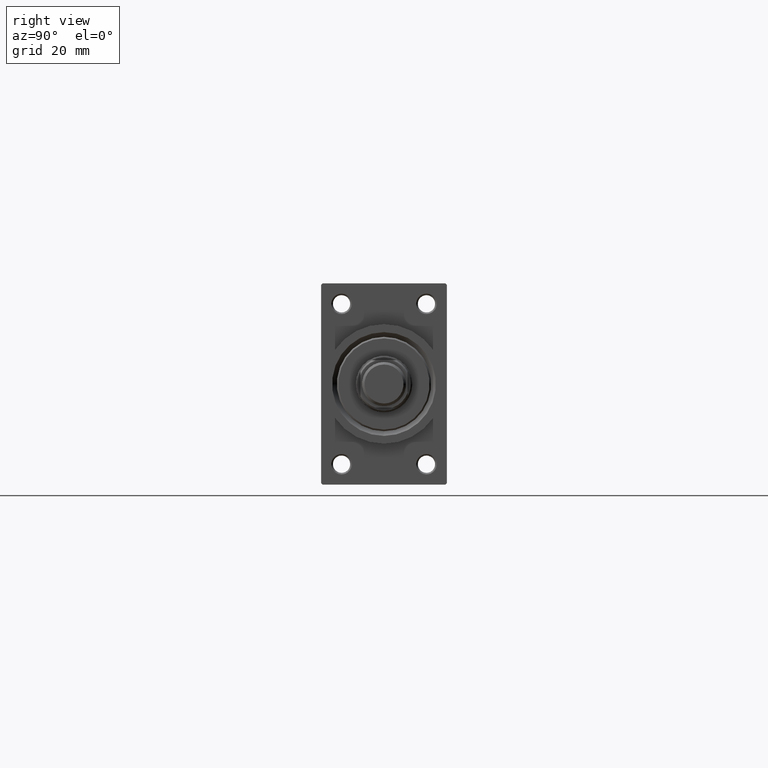
[diagram: clean part render]
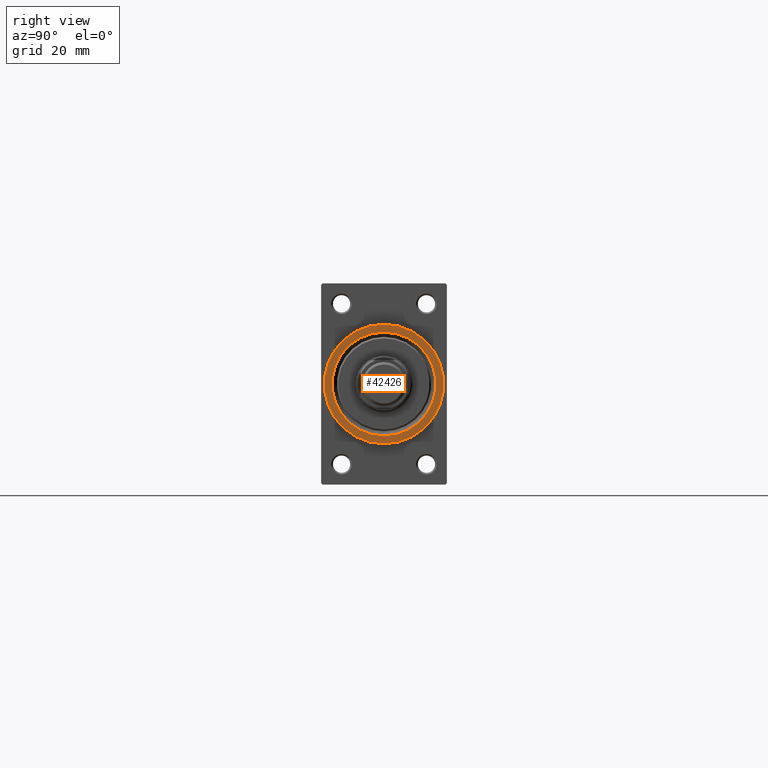
[diagram: same view with one face highlighted and labeled with its STEP entity id]
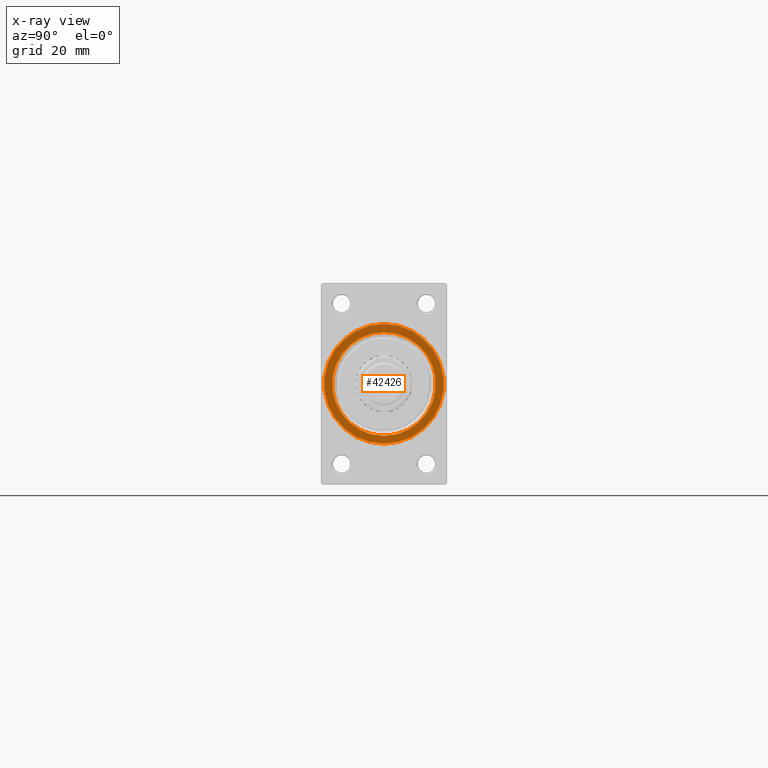
[diagram: x-ray of the same camera — body ghosted, the highlighted face saturated]
A machine part, right view. The second image highlights one B-rep face of the part: STEP entity #42426.
The next image is the same camera in x-ray: the body ghosted, the highlighted face saturated — about 0% of this face is hidden behind the body in this view.
In plain terms, the highlighted planar face has unit normal (1, 0, 0).
Its self-contained STEP definition (entity closure, byte-faithful):
#1198 = EDGE_CURVE ( 'NONE', #14512, #39674, #3209, .T. ) ;
#3209 = CIRCLE ( 'NONE', #33952, 19.00000000000000000 ) ;
#5557 = DIRECTION ( 'NONE',  ( -1.000000000000000000, -0.000000000000000000, -0.000000000000000000 ) ) ;
#5908 = VERTEX_POINT ( 'NONE', #28370 ) ;
#8451 = DIRECTION ( 'NONE',  ( 0.000000000000000000, 0.000000000000000000, -1.000000000000000000 ) ) ;
#9251 = CARTESIAN_POINT ( 'NONE',  ( 179.0000000000000284, 0.000000000000000000, -16.50000000000004263 ) ) ;
#10793 = DIRECTION ( 'NONE',  ( 1.000000000000000000, 0.000000000000000000, 0.000000000000000000 ) ) ;
#13627 = DIRECTION ( 'NONE',  ( 0.000000000000000000, 0.000000000000000000, -1.000000000000000000 ) ) ;
#13783 = DIRECTION ( 'NONE',  ( 0.000000000000000000, 0.000000000000000000, -1.000000000000000000 ) ) ;
#14099 = CARTESIAN_POINT ( 'NONE',  ( 179.0000000000000284, 0.000000000000000000, 0.000000000000000000 ) ) ;
#14512 = VERTEX_POINT ( 'NONE', #34202 ) ;
#16031 = DIRECTION ( 'NONE',  ( 0.000000000000000000, 0.000000000000000000, -1.000000000000000000 ) ) ;
#19997 = CIRCLE ( 'NONE', #30761, 16.50000000000004263 ) ;
#20039 = CARTESIAN_POINT ( 'NONE',  ( 179.0000000000000284, 0.000000000000000000, 0.000000000000000000 ) ) ;
#20818 = EDGE_CURVE ( 'NONE', #39674, #14512, #41443, .T. ) ;
#21853 = CARTESIAN_POINT ( 'NONE',  ( 179.0000000000000284, 0.000000000000000000, 0.000000000000000000 ) ) ;
#23256 = DIRECTION ( 'NONE',  ( 1.000000000000000000, 0.000000000000000000, 0.000000000000000000 ) ) ;
#23668 = EDGE_CURVE ( 'NONE', #38294, #5908, #19997, .T. ) ;
#24120 = DIRECTION ( 'NONE',  ( 0.000000000000000000, 0.000000000000000000, -1.000000000000000000 ) ) ;
#26648 = ORIENTED_EDGE ( 'NONE', *, *, #20818, .T. ) ;
#28370 = CARTESIAN_POINT ( 'NONE',  ( 179.0000000000000284, 2.020667218593137833E-15, 16.50000000000004263 ) ) ;
#29620 = CIRCLE ( 'NONE', #38061, 16.50000000000004263 ) ;
#29850 = ORIENTED_EDGE ( 'NONE', *, *, #41904, .T. ) ;
#30474 = CARTESIAN_POINT ( 'NONE',  ( 179.0000000000000284, 0.000000000000000000, 0.000000000000000000 ) ) ;
#30586 = CARTESIAN_POINT ( 'NONE',  ( 179.0000000000000284, 0.000000000000000000, 0.000000000000000000 ) ) ;
#30761 = AXIS2_PLACEMENT_3D ( 'NONE', #30586, #5557, #8451 ) ;
#30858 = EDGE_LOOP ( 'NONE', ( #26648, #34103 ) ) ;
#31332 = FACE_OUTER_BOUND ( 'NONE', #30858, .T. ) ;
#33952 = AXIS2_PLACEMENT_3D ( 'NONE', #20039, #41947, #13783 ) ;
#34103 = ORIENTED_EDGE ( 'NONE', *, *, #1198, .T. ) ;
#34202 = CARTESIAN_POINT ( 'NONE',  ( 179.0000000000000284, 2.326828918379970970E-15, -19.00000000000000000 ) ) ;
#34649 = CARTESIAN_POINT ( 'NONE',  ( 179.0000000000000284, 0.000000000000000000, 19.00000000000000000 ) ) ;
#35005 = AXIS2_PLACEMENT_3D ( 'NONE', #21853, #10793, #24120 ) ;
#36033 = EDGE_LOOP ( 'NONE', ( #43311, #29850 ) ) ;
#38061 = AXIS2_PLACEMENT_3D ( 'NONE', #14099, #42726, #13627 ) ;
#38294 = VERTEX_POINT ( 'NONE', #9251 ) ;
#38349 = AXIS2_PLACEMENT_3D ( 'NONE', #30474, #23256, #16031 ) ;
#39674 = VERTEX_POINT ( 'NONE', #34649 ) ;
#41443 = CIRCLE ( 'NONE', #38349, 19.00000000000000000 ) ;
#41904 = EDGE_CURVE ( 'NONE', #5908, #38294, #29620, .T. ) ;
#41947 = DIRECTION ( 'NONE',  ( 1.000000000000000000, 0.000000000000000000, 0.000000000000000000 ) ) ;
#42426 = ADVANCED_FACE ( 'NONE', ( #42620, #31332 ), #45983, .T. ) ;
#42620 = FACE_BOUND ( 'NONE', #36033, .T. ) ;
#42726 = DIRECTION ( 'NONE',  ( -1.000000000000000000, -0.000000000000000000, -0.000000000000000000 ) ) ;
#43311 = ORIENTED_EDGE ( 'NONE', *, *, #23668, .T. ) ;
#45983 = PLANE ( 'NONE',  #35005 ) ;